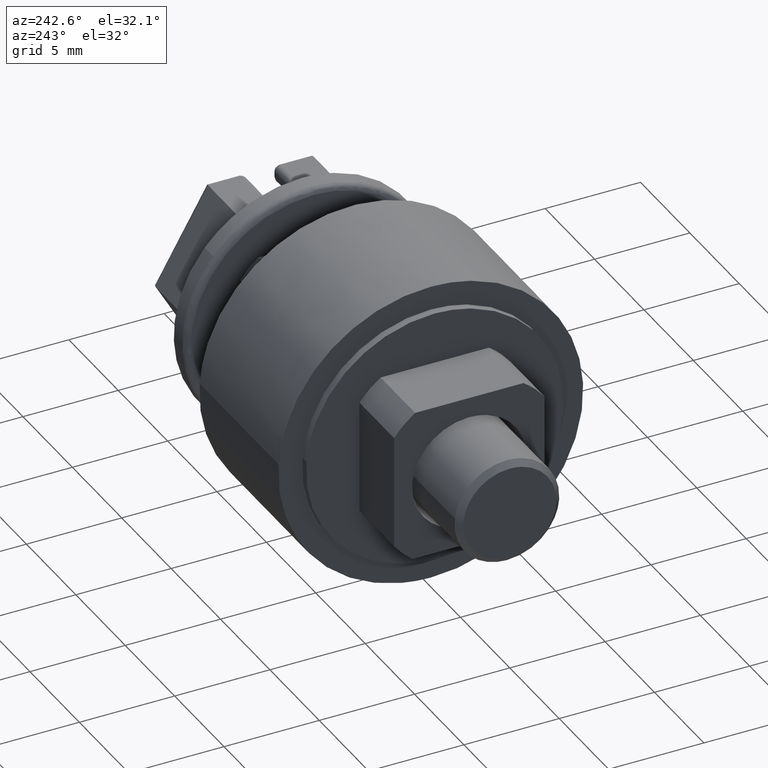
[diagram: clean part render]
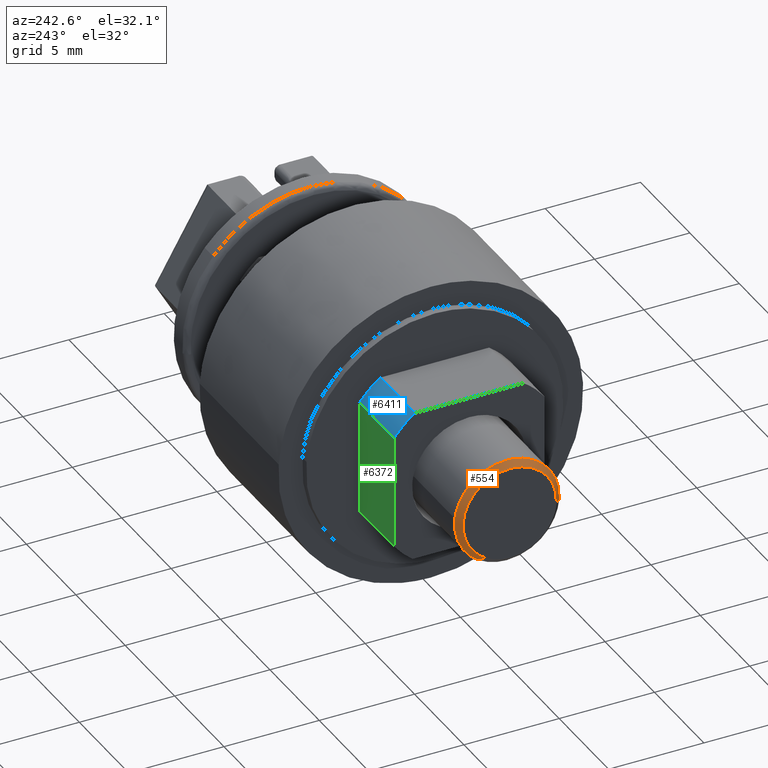
[diagram: same view with three faces highlighted in distinct colors, each labeled with its STEP entity id]
A machine part, auxiliary view with three faces highlighted in distinct colors.
Their STEP definitions:

[orange] entity #554 — the highlighted face is a freeform B-spline surface patch.
#418=CARTESIAN_POINT('',(-0.007500008759833,1.313698765076883,-2.059122501256084));
#419=CARTESIAN_POINT('',(-0.007500008759833,2.550028598825386,-1.270356910655058));
#420=CARTESIAN_POINT('',(-0.007500008759833,2.434967255170445,0.191636079043972));
#421=CARTESIAN_POINT('',(-0.007500008759833,2.243331176126474,2.626603334214417));
#422=CARTESIAN_POINT('',(-0.007500008759833,-0.191636079043972,2.434967255170445));
#423=CARTESIAN_POINT('',(-0.007500008759833,-2.626603334214417,2.243331176126474));
#424=CARTESIAN_POINT('',(-0.007500008759833,-2.434967255170445,-0.191636079043972));
#425=CARTESIAN_POINT('',(0.307687859372133,1.483222810036102,-2.324838497007244));
#426=CARTESIAN_POINT('',(0.307687859372133,2.879092745284616,-1.434287978995172));
#427=CARTESIAN_POINT('',(0.307687859372133,2.749183504293265,0.216365434161967));
#428=CARTESIAN_POINT('',(0.307687859372133,2.532818070131297,2.965548938455233));
#429=CARTESIAN_POINT('',(0.307687859372133,-0.216365434161967,2.749183504293265));
#430=CARTESIAN_POINT('',(0.307687859372133,-2.965548938455233,2.532818070131297));
#431=CARTESIAN_POINT('',(0.307687859372133,-2.749183504293265,-0.216365434161967));
#439=(BOUNDED_SURFACE()B_SPLINE_SURFACE(2,1,((#418,#425),(#419,#426),(#420,#427),(#421,#428),(#422,#429),(#423,#430),(#424,#431)),.UNSPECIFIED.,.F.,.F.,.U.)B_SPLINE_SURFACE_WITH_KNOTS((3,2,2,3),(2,2),(0.0,3.106975300722945,7.676056625315511,12.245137949908081),(0.0,0.445742957807456),.UNSPECIFIED.)GEOMETRIC_REPRESENTATION_ITEM()RATIONAL_B_SPLINE_SURFACE(((0.872532871172386,0.872532871172386),(0.800832611206852,0.800832611206852),(1.0,1.0),(0.707106781186548,0.707106781186548),(1.0,1.0),(0.707106781186548,0.707106781186548),(1.0,1.0)))REPRESENTATION_ITEM('')SURFACE());
#440=CARTESIAN_POINT('',(0.300000350393299,2.730773685702082,0.324589999132042));
#441=VERTEX_POINT('',#440);
#442=CARTESIAN_POINT('',(0.300000350393630,1.479088077237488,-2.318357619059119));
#443=VERTEX_POINT('',#442);
#444=CARTESIAN_POINT('',(0.300000350393299,2.730773685702082,0.324589999132041));
#445=CARTESIAN_POINT('',(0.300000350393304,2.749997016375430,0.162864235283642));
#446=CARTESIAN_POINT('',(0.300000350393305,2.749997016375430,0.0));
#447=CARTESIAN_POINT('',(0.300000350393304,2.749997016375430,-1.507530918428539));
#448=CARTESIAN_POINT('',(0.300000350393630,1.479088077237488,-2.318357619059119));
#456=(BOUNDED_CURVE()B_SPLINE_CURVE(2,(#444,#445,#446,#447,#448),.UNSPECIFIED.,.F.,.U.)B_SPLINE_CURVE_WITH_KNOTS((3,2,3),(0.229562708320601,0.250000000000000,0.407950112626899),.UNSPECIFIED.)CURVE()GEOMETRIC_REPRESENTATION_ITEM()RATIONAL_B_SPLINE_CURVE((0.956027214415727,0.976056223424766,1.0,0.814949932403041,0.863729296954521))REPRESENTATION_ITEM(''));
#457=EDGE_CURVE('',#441,#443,#456,.T.);
#458=ORIENTED_EDGE('',*,*,#457,.T.);
#459=CARTESIAN_POINT('',(4.039646E-013,1.317732650745744,-2.065445309003761));
#460=VERTEX_POINT('',#459);
#461=CARTESIAN_POINT('',(4.039646E-013,1.317732650745744,-2.065445309003761));
#462=CARTESIAN_POINT('',(0.300000350393630,1.479088077237488,-2.318357619059119));
#463=QUASI_UNIFORM_CURVE('',1,(#461,#462),.UNSPECIFIED.,.F.,.U.);
#464=EDGE_CURVE('',#460,#443,#463,.T.);
#465=ORIENTED_EDGE('',*,*,#464,.F.);
#466=CARTESIAN_POINT('',(0.0,0.0,2.449996665982440));
#467=VERTEX_POINT('',#466);
#468=CARTESIAN_POINT('',(0.0,0.0,2.449996665982440));
#469=CARTESIAN_POINT('',(0.0,2.449996665982440,2.449996665982440));
#470=CARTESIAN_POINT('',(0.0,2.449996665982440,0.0));
#471=CARTESIAN_POINT('',(0.0,2.449996665982439,-1.343072629539021));
#472=CARTESIAN_POINT('',(4.039646E-013,1.317732650745744,-2.065445309003761));
#480=(BOUNDED_CURVE()B_SPLINE_CURVE(2,(#468,#469,#470,#471,#472),.UNSPECIFIED.,.F.,.U.)B_SPLINE_CURVE_WITH_KNOTS((3,2,3),(0.0,0.250000000000000,0.407950112626636),.UNSPECIFIED.)CURVE()GEOMETRIC_REPRESENTATION_ITEM()RATIONAL_B_SPLINE_CURVE((1.0,0.707106781186548,1.0,0.814949932403349,0.863729296954359))REPRESENTATION_ITEM(''));
#481=EDGE_CURVE('',#467,#460,#480,.T.);
#482=ORIENTED_EDGE('',*,*,#481,.F.);
#483=CARTESIAN_POINT('',(2.132718E-012,-2.442444143907121,-0.192224522965528));
#484=VERTEX_POINT('',#483);
#485=CARTESIAN_POINT('',(2.132718E-012,-2.442444143907121,-0.192224522965528));
#486=CARTESIAN_POINT('',(0.0,-2.449996665982439,-0.096260631191102));
#487=CARTESIAN_POINT('',(0.0,-2.449996665982440,0.0));
#488=CARTESIAN_POINT('',(0.0,-2.449996665982440,2.449996665982440));
#489=CARTESIAN_POINT('',(0.0,0.0,2.449996665982440));
#497=(BOUNDED_CURVE()B_SPLINE_CURVE(2,(#485,#486,#487,#488,#489),.UNSPECIFIED.,.F.,.U.)B_SPLINE_CURVE_WITH_KNOTS((3,2,3),(0.736331300630501,0.750000000000000,1.0),.UNSPECIFIED.)CURVE()GEOMETRIC_REPRESENTATION_ITEM()RATIONAL_B_SPLINE_CURVE((0.969723356167087,0.983986122578696,1.0,0.707106781186548,1.0))REPRESENTATION_ITEM(''));
#498=EDGE_CURVE('',#484,#467,#497,.T.);
#499=ORIENTED_EDGE('',*,*,#498,.F.);
#500=CARTESIAN_POINT('',(0.300000350403576,-2.741519693343145,-0.215762279237982));
#501=VERTEX_POINT('',#500);
#502=CARTESIAN_POINT('',(2.132718E-012,-2.442444143907121,-0.192224522965528));
#503=CARTESIAN_POINT('',(0.300000350403576,-2.741519693343145,-0.215762279237982));
#504=QUASI_UNIFORM_CURVE('',1,(#502,#503),.UNSPECIFIED.,.F.,.U.);
#505=EDGE_CURVE('',#484,#501,#504,.T.);
#506=ORIENTED_EDGE('',*,*,#505,.T.);
#507=CARTESIAN_POINT('',(0.300000350393304,-2.744867717599466,-0.167883301594785));
#508=VERTEX_POINT('',#507);
#509=CARTESIAN_POINT('',(0.300000350403576,-2.741519693343145,-0.215762279237982));
#510=CARTESIAN_POINT('',(0.300000350393305,-2.743402622217162,-0.191837399347576));
#511=CARTESIAN_POINT('',(0.300000350393304,-2.744867717599467,-0.167883301594784));
#519=(BOUNDED_CURVE()B_SPLINE_CURVE(2,(#509,#510,#511),.UNSPECIFIED.,.F.,.U.)B_SPLINE_CURVE_WITH_KNOTS((3,3),(0.736331300623001,0.739332962239472),.UNSPECIFIED.)CURVE()GEOMETRIC_REPRESENTATION_ITEM()RATIONAL_B_SPLINE_CURVE((0.969723356151436,0.972855475552281,0.976072041667852))REPRESENTATION_ITEM(''));
#520=EDGE_CURVE('',#501,#508,#519,.T.);
#521=ORIENTED_EDGE('',*,*,#520,.T.);
#522=CARTESIAN_POINT('',(0.300000350393305,0.0,2.749997016375430));
#523=VERTEX_POINT('',#522);
#524=CARTESIAN_POINT('',(0.300000350393304,-2.744867717599467,-0.167883301594785));
#525=CARTESIAN_POINT('',(0.300000350393304,-2.749997016375430,-0.084020007933047));
#526=CARTESIAN_POINT('',(0.300000350393305,-2.749997016375430,0.0));
#527=CARTESIAN_POINT('',(0.300000350393304,-2.749997016375431,2.749997016375431));
#528=CARTESIAN_POINT('',(0.300000350393305,0.0,2.749997016375430));
#536=(BOUNDED_CURVE()B_SPLINE_CURVE(2,(#524,#525,#526,#527,#528),.UNSPECIFIED.,.F.,.U.)B_SPLINE_CURVE_WITH_KNOTS((3,2,3),(0.739332962239473,0.750000000000000,1.0),.UNSPECIFIED.)CURVE()GEOMETRIC_REPRESENTATION_ITEM()RATIONAL_B_SPLINE_CURVE((0.976072041667854,0.987502787900459,1.0,0.707106781186547,1.0))REPRESENTATION_ITEM(''));
#537=EDGE_CURVE('',#508,#523,#536,.T.);
#538=ORIENTED_EDGE('',*,*,#537,.T.);
#539=CARTESIAN_POINT('',(0.300000350393305,0.0,2.749997016375430));
#540=CARTESIAN_POINT('',(0.300000350393304,2.442480713737133,2.749997016375431));
#541=CARTESIAN_POINT('',(0.300000350393299,2.730773685702082,0.324589999132041));
#549=(BOUNDED_CURVE()B_SPLINE_CURVE(2,(#539,#540,#541),.UNSPECIFIED.,.F.,.U.)B_SPLINE_CURVE_WITH_KNOTS((3,3),(0.0,0.229562708320601),.UNSPECIFIED.)CURVE()GEOMETRIC_REPRESENTATION_ITEM()RATIONAL_B_SPLINE_CURVE((1.0,0.731050557761782,0.956027214415727))REPRESENTATION_ITEM(''));
#550=EDGE_CURVE('',#523,#441,#549,.T.);
#551=ORIENTED_EDGE('',*,*,#550,.T.);
#552=EDGE_LOOP('',(#458,#465,#482,#499,#506,#521,#538,#551));
#553=FACE_OUTER_BOUND('',#552,.T.);
#554=ADVANCED_FACE('',(#553),#439,.T.);

[blue] entity #6411 — the highlighted face is a freeform B-spline surface patch.
#6255=CARTESIAN_POINT('',(4.100000530883330,2.846050029331880,4.050000192364680));
#6256=VERTEX_POINT('',#6255);
#6262=CARTESIAN_POINT('',(4.100000530883330,3.950000187615035,2.983286919733705));
#6263=VERTEX_POINT('',#6262);
#6264=CARTESIAN_POINT('',(4.100000530883330,2.846050029331880,4.050000192364680));
#6265=CARTESIAN_POINT('',(4.100000530883331,3.481741176607351,3.603281989298748));
#6266=CARTESIAN_POINT('',(4.100000530883330,3.950000187615035,2.983286919733705));
#6274=(BOUNDED_CURVE()B_SPLINE_CURVE(2,(#6264,#6265,#6266),.UNSPECIFIED.,.F.,.U.)CURVE()GEOMETRIC_REPRESENTATION_ITEM()QUASI_UNIFORM_CURVE()RATIONAL_B_SPLINE_CURVE((1.0,0.987904696247208,1.0))REPRESENTATION_ITEM(''));
#6275=EDGE_CURVE('',#6256,#6263,#6274,.T.);
#6357=CARTESIAN_POINT('',(7.600000697124400,3.950000187615005,2.983286919733705));
#6358=VERTEX_POINT('',#6357);
#6359=CARTESIAN_POINT('',(7.600000697124400,3.950000187615005,2.983286919733705));
#6360=CARTESIAN_POINT('',(4.100000530883330,3.950000187615035,2.983286919733705));
#6361=QUASI_UNIFORM_CURVE('',1,(#6359,#6360),.UNSPECIFIED.,.F.,.U.);
#6362=EDGE_CURVE('',#6358,#6263,#6361,.T.);
#6373=CARTESIAN_POINT('',(7.687500701280437,3.995617840781811,2.921906979703343));
#6374=CARTESIAN_POINT('',(4.010313026623400,3.995617840781811,2.921906979703343));
#6375=CARTESIAN_POINT('',(7.687500701280436,3.490527671509240,3.612602236454428));
#6376=CARTESIAN_POINT('',(4.010313026623401,3.490527671509240,3.612602236454428));
#6377=CARTESIAN_POINT('',(7.687500701280436,2.782884443136381,4.093660526199320));
#6378=CARTESIAN_POINT('',(4.010313026623401,2.782884443136381,4.093660526199320));
#6386=(BOUNDED_SURFACE()B_SPLINE_SURFACE(1,2,((#6373,#6375,#6377),(#6374,#6376,#6378)),.UNSPECIFIED.,.F.,.F.,.U.)B_SPLINE_SURFACE_WITH_KNOTS((2,2),(3,3),(0.0,3.677187674657037),(0.0,1.698746802237653),.UNSPECIFIED.)GEOMETRIC_REPRESENTATION_ITEM()RATIONAL_B_SPLINE_SURFACE(((0.998627244213752,0.981944968006103,0.994393374296795),(0.998627244213752,0.981944968006103,0.994393374296795)))REPRESENTATION_ITEM('')SURFACE());
#6387=ORIENTED_EDGE('',*,*,#6275,.F.);
#6388=CARTESIAN_POINT('',(7.600000697124409,2.846050029331825,4.050000192364600));
#6389=VERTEX_POINT('',#6388);
#6390=CARTESIAN_POINT('',(7.600000697124409,2.846050029331825,4.050000192364600));
#6391=CARTESIAN_POINT('',(4.100000530883330,2.846050029331880,4.050000192364680));
#6392=QUASI_UNIFORM_CURVE('',1,(#6390,#6391),.UNSPECIFIED.,.F.,.U.);
#6393=EDGE_CURVE('',#6389,#6256,#6392,.T.);
#6394=ORIENTED_EDGE('',*,*,#6393,.F.);
#6395=CARTESIAN_POINT('',(7.600000697124409,2.846050029331826,4.050000192364601));
#6396=CARTESIAN_POINT('',(7.600000697124409,3.481741176607343,3.603281989298754));
#6397=CARTESIAN_POINT('',(7.600000697124400,3.950000187615005,2.983286919733705));
#6405=(BOUNDED_CURVE()B_SPLINE_CURVE(2,(#6395,#6396,#6397),.UNSPECIFIED.,.F.,.U.)CURVE()GEOMETRIC_REPRESENTATION_ITEM()QUASI_UNIFORM_CURVE()RATIONAL_B_SPLINE_CURVE((1.0,0.987904696247208,1.0))REPRESENTATION_ITEM(''));
#6406=EDGE_CURVE('',#6389,#6358,#6405,.T.);
#6407=ORIENTED_EDGE('',*,*,#6406,.T.);
#6408=ORIENTED_EDGE('',*,*,#6362,.T.);
#6409=EDGE_LOOP('',(#6387,#6394,#6407,#6408));
#6410=FACE_OUTER_BOUND('',#6409,.T.);
#6411=ADVANCED_FACE('',(#6410),#6386,.T.);

[green] entity #6372 — the highlighted face is a freeform B-spline surface patch.
#6262=CARTESIAN_POINT('',(4.100000530883330,3.950000187615035,2.983286919733705));
#6263=VERTEX_POINT('',#6262);
#6277=CARTESIAN_POINT('',(4.100000530883330,3.950000187614934,-2.983286919733645));
#6278=VERTEX_POINT('',#6277);
#6279=CARTESIAN_POINT('',(4.100000530883330,3.950000187615035,2.983286919733705));
#6280=CARTESIAN_POINT('',(4.100000530883330,3.950000187614934,-2.983286919733645));
#6281=QUASI_UNIFORM_CURVE('',1,(#6279,#6280),.UNSPECIFIED.,.F.,.U.);
#6282=EDGE_CURVE('',#6263,#6278,#6281,.T.);
#6321=CARTESIAN_POINT('',(7.600000697124409,3.950000187614994,-2.983286919733690));
#6322=VERTEX_POINT('',#6321);
#6323=CARTESIAN_POINT('',(7.600000697124409,3.950000187614994,-2.983286919733690));
#6324=CARTESIAN_POINT('',(4.100000530883330,3.950000187614934,-2.983286919733645));
#6325=QUASI_UNIFORM_CURVE('',1,(#6323,#6324),.UNSPECIFIED.,.F.,.U.);
#6326=EDGE_CURVE('',#6322,#6278,#6325,.T.);
#6351=CARTESIAN_POINT('',(3.925175365085781,3.950000187615005,-3.281317215440783));
#6352=CARTESIAN_POINT('',(3.925175365085781,3.950000187615005,3.281317428822106));
#6353=CARTESIAN_POINT('',(7.774825800337079,3.950000187615005,-3.281317215440783));
#6354=CARTESIAN_POINT('',(7.774825800337079,3.950000187615005,3.281317428822106));
#6355=B_SPLINE_SURFACE_WITH_KNOTS('',1,1,((#6351,#6353),(#6352,#6354)),.UNSPECIFIED.,.F.,.F.,.U.,(2,2),(2,2),(0.0,6.562634644262889),(0.0,3.849650435251299),.UNSPECIFIED.);
#6356=ORIENTED_EDGE('',*,*,#6282,.F.);
#6357=CARTESIAN_POINT('',(7.600000697124400,3.950000187615005,2.983286919733705));
#6358=VERTEX_POINT('',#6357);
#6359=CARTESIAN_POINT('',(7.600000697124400,3.950000187615005,2.983286919733705));
#6360=CARTESIAN_POINT('',(4.100000530883330,3.950000187615035,2.983286919733705));
#6361=QUASI_UNIFORM_CURVE('',1,(#6359,#6360),.UNSPECIFIED.,.F.,.U.);
#6362=EDGE_CURVE('',#6358,#6263,#6361,.T.);
#6363=ORIENTED_EDGE('',*,*,#6362,.F.);
#6364=CARTESIAN_POINT('',(7.600000697124400,3.950000187615005,2.983286919733705));
#6365=CARTESIAN_POINT('',(7.600000697124409,3.950000187614994,-2.983286919733690));
#6366=QUASI_UNIFORM_CURVE('',1,(#6364,#6365),.UNSPECIFIED.,.F.,.U.);
#6367=EDGE_CURVE('',#6358,#6322,#6366,.T.);
#6368=ORIENTED_EDGE('',*,*,#6367,.T.);
#6369=ORIENTED_EDGE('',*,*,#6326,.T.);
#6370=EDGE_LOOP('',(#6356,#6363,#6368,#6369));
#6371=FACE_OUTER_BOUND('',#6370,.T.);
#6372=ADVANCED_FACE('',(#6371),#6355,.T.);